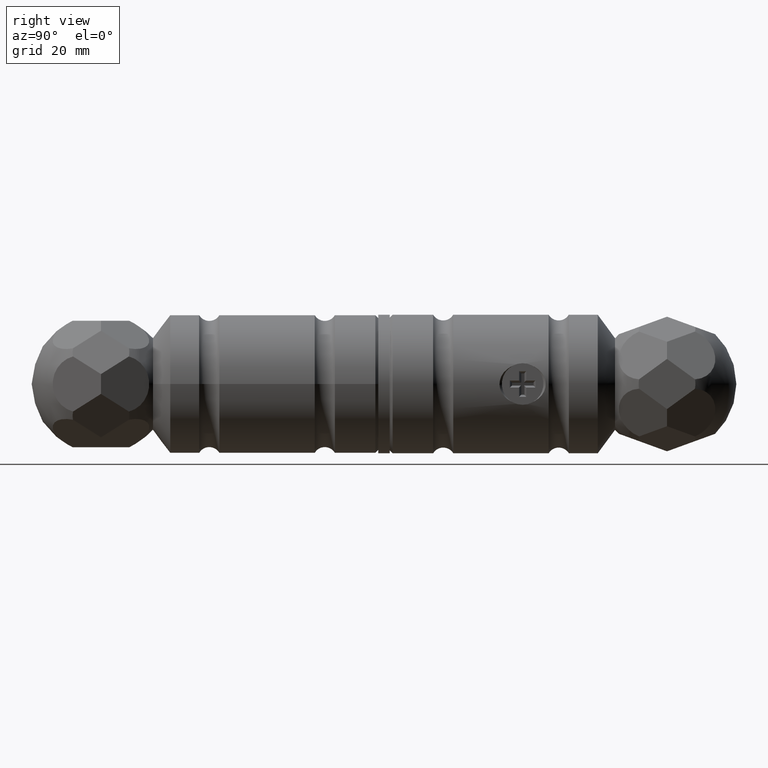
[diagram: clean part render]
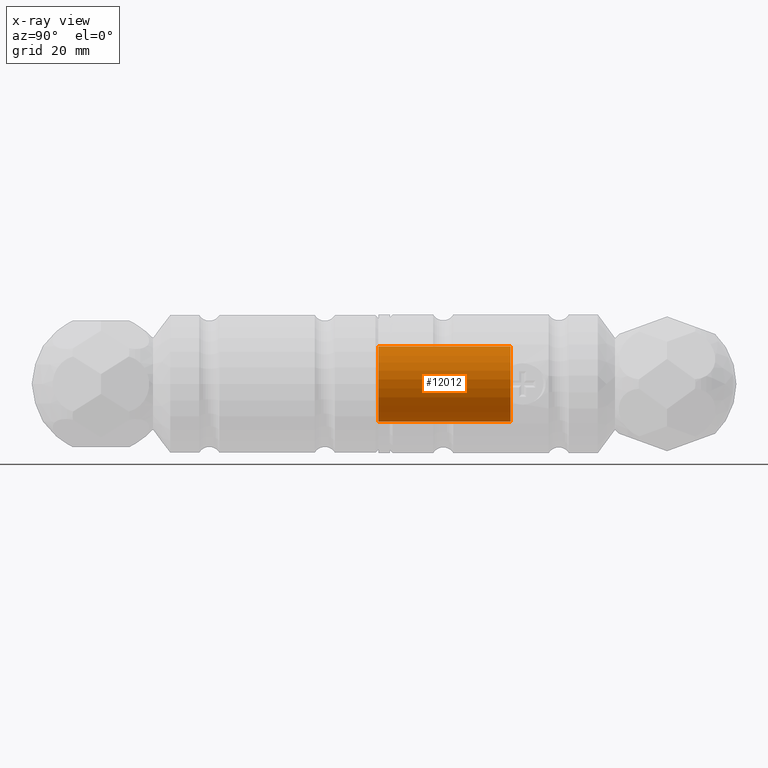
[diagram: x-ray — body ghosted, one internal face saturated and labeled with its STEP entity id]
A machine part, right view, then the same camera in x-ray: the body is ghosted and one INTERNAL B-rep face — a face not visible from any outside direction — is saturated and labeled: STEP entity #12012.
In plain terms, the highlighted cylindrical surface (bore or boss wall) has radius 6.5 mm, axis along (-0, -1, 0).
Its self-contained STEP definition (entity closure, byte-faithful):
#56 = EDGE_LOOP ( 'NONE', ( #1916 ) ) ;
#941 = DIRECTION ( 'NONE',  ( 5.200131019955375849E-47, -1.000000000000000000, 0.000000000000000000 ) ) ;
#1405 = FACE_OUTER_BOUND ( 'NONE', #56, .T. ) ;
#1545 = CIRCLE ( 'NONE', #2584, 6.500000000000000888 ) ;
#1594 = CARTESIAN_POINT ( 'NONE',  ( 0.000000000000000000, 0.000000000000000000, -6.500000000000000888 ) ) ;
#1916 = ORIENTED_EDGE ( 'NONE', *, *, #2544, .T. ) ;
#2544 = EDGE_CURVE ( 'NONE', #4541, #4541, #1545, .T. ) ;
#2584 = AXIS2_PLACEMENT_3D ( 'NONE', #10173, #941, #6006 ) ;
#3271 = VERTEX_POINT ( 'NONE', #4685 ) ;
#4541 = VERTEX_POINT ( 'NONE', #1594 ) ;
#4685 = CARTESIAN_POINT ( 'NONE',  ( -1.710569414459005214E-46, -22.89999999999999503, -6.500000000000000888 ) ) ;
#5384 = EDGE_CURVE ( 'NONE', #3271, #3271, #10150, .T. ) ;
#5608 = CARTESIAN_POINT ( 'NONE',  ( -1.710569414459005214E-46, -22.89999999999999503, 2.888894916580853780E-31 ) ) ;
#6006 = DIRECTION ( 'NONE',  ( 0.000000000000000000, 0.000000000000000000, -1.000000000000000000 ) ) ;
#6480 = ORIENTED_EDGE ( 'NONE', *, *, #5384, .F. ) ;
#7596 = CYLINDRICAL_SURFACE ( 'NONE', #9546, 6.500000000000000888 ) ;
#8555 = CARTESIAN_POINT ( 'NONE',  ( 0.000000000000000000, -34.00000000000000000, -9.629649721936179265E-32 ) ) ;
#8759 = EDGE_LOOP ( 'NONE', ( #6480 ) ) ;
#9546 = AXIS2_PLACEMENT_3D ( 'NONE', #8555, #10642, #9669 ) ;
#9620 = DIRECTION ( 'NONE',  ( 0.000000000000000000, 0.000000000000000000, -1.000000000000000000 ) ) ;
#9669 = DIRECTION ( 'NONE',  ( 0.000000000000000000, 0.000000000000000000, 1.000000000000000000 ) ) ;
#10150 = CIRCLE ( 'NONE', #12797, 6.500000000000000888 ) ;
#10173 = CARTESIAN_POINT ( 'NONE',  ( 0.000000000000000000, 0.000000000000000000, 0.000000000000000000 ) ) ;
#10642 = DIRECTION ( 'NONE',  ( -5.200131019955375849E-47, 1.000000000000000000, 0.000000000000000000 ) ) ;
#12012 = ADVANCED_FACE ( 'NONE', ( #1405, #12065 ), #7596, .T. ) ;
#12065 = FACE_OUTER_BOUND ( 'NONE', #8759, .T. ) ;
#12748 = DIRECTION ( 'NONE',  ( 5.200131019955375849E-47, -1.000000000000000000, 0.000000000000000000 ) ) ;
#12797 = AXIS2_PLACEMENT_3D ( 'NONE', #5608, #12748, #9620 ) ;